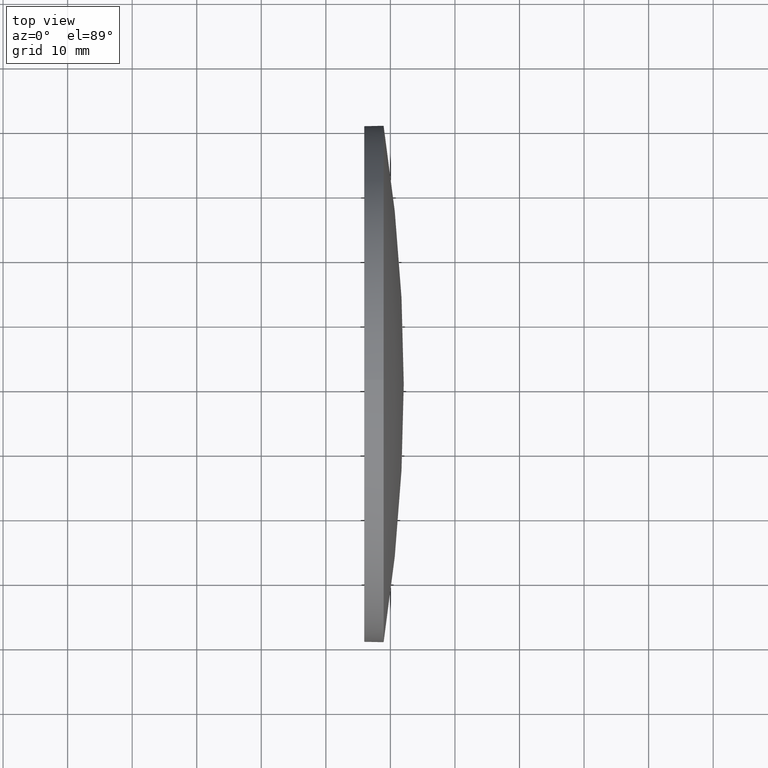
[diagram: clean part render]
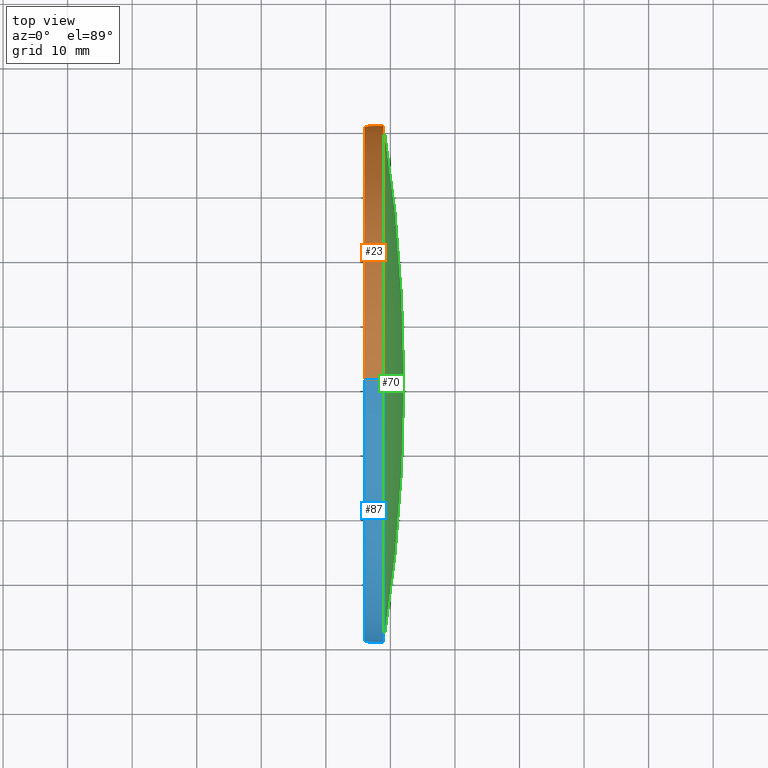
[diagram: same view with three faces highlighted in distinct colors, each labeled with its STEP entity id]
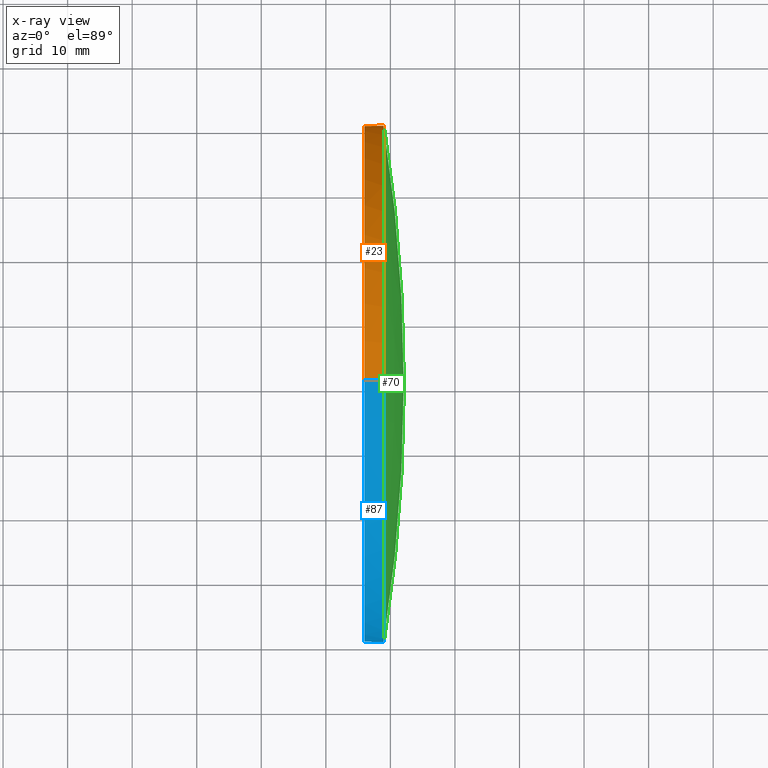
[diagram: x-ray of the same camera — body ghosted, the three highlighted faces saturated]
A machine part, top view with three faces highlighted in distinct colors.
The next image is the same camera in x-ray (body ghosted, the three faces saturated) — at least one of them is partly hidden behind the body in this view.
Their STEP definitions:

[orange] entity #23 — the highlighted cylindrical surface (partial cylindrical patch) has radius 40 mm, axis along (-1, -0, -0).
#8 = CARTESIAN_POINT ( 'NONE',  ( 228.9490942240209100, 130.4671098528244200, 40.00000000000000700 ) ) ;
#9 = DIRECTION ( 'NONE',  ( -1.000000000000000000, -0.0000000000000000000, -0.0000000000000000000 ) ) ;
#14 = DIRECTION ( 'NONE',  ( -1.000000000000000000, -0.0000000000000000000, -0.0000000000000000000 ) ) ;
#16 = CARTESIAN_POINT ( 'NONE',  ( 217.9945825323866300, 130.4671098528244200, 40.00000000000000700 ) ) ;
#17 = AXIS2_PLACEMENT_3D ( 'NONE', #151, #9, #65 ) ;
#23 = ADVANCED_FACE ( 'NONE', ( #91 ), #48, .T. ) ;
#24 = CIRCLE ( 'NONE', #121, 40.00000000000000700 ) ;
#27 = DIRECTION ( 'NONE',  ( 0.0000000000000000000, 0.0000000000000000000, 1.000000000000000000 ) ) ;
#29 = LINE ( 'NONE', #33, #43 ) ;
#33 = CARTESIAN_POINT ( 'NONE',  ( 217.9945825323866300, 130.4671098528244200, -40.00000000000000700 ) ) ;
#38 = CIRCLE ( 'NONE', #17, 40.00000000000000700 ) ;
#43 = VECTOR ( 'NONE', #124, 1000.000000000000000 ) ;
#44 = EDGE_CURVE ( 'NONE', #183, #128, #143, .T. ) ;
#48 = CYLINDRICAL_SURFACE ( 'NONE', #106, 40.00000000000000700 ) ;
#51 = DIRECTION ( 'NONE',  ( -1.000000000000000000, -0.0000000000000000000, -0.0000000000000000000 ) ) ;
#52 = ORIENTED_EDGE ( 'NONE', *, *, #164, .F. ) ;
#56 = CIRCLE ( 'NONE', #158, 40.00000000000000700 ) ;
#65 = DIRECTION ( 'NONE',  ( 0.0000000000000000000, 0.0000000000000000000, 1.000000000000000000 ) ) ;
#69 = EDGE_CURVE ( 'NONE', #78, #170, #24, .T. ) ;
#78 = VERTEX_POINT ( 'NONE', #92 ) ;
#82 = VECTOR ( 'NONE', #107, 1000.000000000000000 ) ;
#83 = CARTESIAN_POINT ( 'NONE',  ( 228.9490942240209100, 130.4671098528244200, -40.00000000000000700 ) ) ;
#91 = FACE_OUTER_BOUND ( 'NONE', #159, .T. ) ;
#92 = CARTESIAN_POINT ( 'NONE',  ( 228.9490942240209100, 170.4671098528244500, 0.0000000000000000000 ) ) ;
#93 = DIRECTION ( 'NONE',  ( -1.000000000000000000, -0.0000000000000000000, -0.0000000000000000000 ) ) ;
#96 = EDGE_CURVE ( 'NONE', #183, #78, #38, .T. ) ;
#101 = EDGE_CURVE ( 'NONE', #170, #178, #29, .T. ) ;
#105 = ORIENTED_EDGE ( 'NONE', *, *, #101, .T. ) ;
#106 = AXIS2_PLACEMENT_3D ( 'NONE', #162, #14, #27 ) ;
#107 = DIRECTION ( 'NONE',  ( -1.000000000000000000, -0.0000000000000000000, -0.0000000000000000000 ) ) ;
#109 = ORIENTED_EDGE ( 'NONE', *, *, #44, .F. ) ;
#118 = CARTESIAN_POINT ( 'NONE',  ( 228.9490942240209100, 130.4671098528244200, 0.0000000000000000000 ) ) ;
#121 = AXIS2_PLACEMENT_3D ( 'NONE', #118, #93, #184 ) ;
#124 = DIRECTION ( 'NONE',  ( -1.000000000000000000, -0.0000000000000000000, -0.0000000000000000000 ) ) ;
#127 = ORIENTED_EDGE ( 'NONE', *, *, #69, .T. ) ;
#128 = VERTEX_POINT ( 'NONE', #180 ) ;
#129 = ORIENTED_EDGE ( 'NONE', *, *, #96, .T. ) ;
#143 = LINE ( 'NONE', #16, #82 ) ;
#151 = CARTESIAN_POINT ( 'NONE',  ( 228.9490942240209100, 130.4671098528244200, 0.0000000000000000000 ) ) ;
#153 = DIRECTION ( 'NONE',  ( 0.0000000000000000000, 0.0000000000000000000, 1.000000000000000000 ) ) ;
#158 = AXIS2_PLACEMENT_3D ( 'NONE', #169, #51, #153 ) ;
#159 = EDGE_LOOP ( 'NONE', ( #127, #105, #52, #109, #129 ) ) ;
#162 = CARTESIAN_POINT ( 'NONE',  ( 217.9945825323866300, 130.4671098528244200, 0.0000000000000000000 ) ) ;
#164 = EDGE_CURVE ( 'NONE', #128, #178, #56, .T. ) ;
#169 = CARTESIAN_POINT ( 'NONE',  ( 225.9490942240209100, 130.4671098528244200, 0.0000000000000000000 ) ) ;
#170 = VERTEX_POINT ( 'NONE', #83 ) ;
#178 = VERTEX_POINT ( 'NONE', #182 ) ;
#180 = CARTESIAN_POINT ( 'NONE',  ( 225.9490942240209100, 130.4671098528244200, 40.00000000000000700 ) ) ;
#182 = CARTESIAN_POINT ( 'NONE',  ( 225.9490942240209100, 130.4671098528244200, -40.00000000000000700 ) ) ;
#183 = VERTEX_POINT ( 'NONE', #8 ) ;
#184 = DIRECTION ( 'NONE',  ( 0.0000000000000000000, 0.0000000000000000000, 1.000000000000000000 ) ) ;

[blue] entity #87 — the highlighted cylindrical surface (partial cylindrical patch) has radius 40 mm, axis along (-1, -0, -0).
#8 = CARTESIAN_POINT ( 'NONE',  ( 228.9490942240209100, 130.4671098528244200, 40.00000000000000700 ) ) ;
#16 = CARTESIAN_POINT ( 'NONE',  ( 217.9945825323866300, 130.4671098528244200, 40.00000000000000700 ) ) ;
#19 = ORIENTED_EDGE ( 'NONE', *, *, #31, .F. ) ;
#22 = CARTESIAN_POINT ( 'NONE',  ( 217.9945825323866300, 130.4671098528244200, 0.0000000000000000000 ) ) ;
#26 = ORIENTED_EDGE ( 'NONE', *, *, #44, .T. ) ;
#29 = LINE ( 'NONE', #33, #43 ) ;
#30 = DIRECTION ( 'NONE',  ( -1.000000000000000000, -0.0000000000000000000, -0.0000000000000000000 ) ) ;
#31 = EDGE_CURVE ( 'NONE', #178, #128, #115, .T. ) ;
#32 = CARTESIAN_POINT ( 'NONE',  ( 228.9490942240209100, 130.4671098528244200, 0.0000000000000000000 ) ) ;
#33 = CARTESIAN_POINT ( 'NONE',  ( 217.9945825323866300, 130.4671098528244200, -40.00000000000000700 ) ) ;
#37 = EDGE_CURVE ( 'NONE', #170, #148, #73, .T. ) ;
#41 = AXIS2_PLACEMENT_3D ( 'NONE', #32, #123, #136 ) ;
#43 = VECTOR ( 'NONE', #124, 1000.000000000000000 ) ;
#44 = EDGE_CURVE ( 'NONE', #183, #128, #143, .T. ) ;
#73 = CIRCLE ( 'NONE', #113, 40.00000000000000700 ) ;
#77 = CYLINDRICAL_SURFACE ( 'NONE', #132, 40.00000000000000700 ) ;
#79 = DIRECTION ( 'NONE',  ( 0.0000000000000000000, 0.0000000000000000000, 1.000000000000000000 ) ) ;
#82 = VECTOR ( 'NONE', #107, 1000.000000000000000 ) ;
#83 = CARTESIAN_POINT ( 'NONE',  ( 228.9490942240209100, 130.4671098528244200, -40.00000000000000700 ) ) ;
#84 = EDGE_CURVE ( 'NONE', #148, #183, #138, .T. ) ;
#87 = ADVANCED_FACE ( 'NONE', ( #167 ), #77, .T. ) ;
#94 = CARTESIAN_POINT ( 'NONE',  ( 225.9490942240209100, 130.4671098528244200, 0.0000000000000000000 ) ) ;
#97 = CARTESIAN_POINT ( 'NONE',  ( 228.9490942240209100, 90.46710985282437900, -4.898587196589416200E-015 ) ) ;
#100 = EDGE_LOOP ( 'NONE', ( #157, #174, #112, #26, #19 ) ) ;
#101 = EDGE_CURVE ( 'NONE', #170, #178, #29, .T. ) ;
#107 = DIRECTION ( 'NONE',  ( -1.000000000000000000, -0.0000000000000000000, -0.0000000000000000000 ) ) ;
#110 = DIRECTION ( 'NONE',  ( 0.0000000000000000000, 0.0000000000000000000, 1.000000000000000000 ) ) ;
#112 = ORIENTED_EDGE ( 'NONE', *, *, #84, .T. ) ;
#113 = AXIS2_PLACEMENT_3D ( 'NONE', #146, #30, #117 ) ;
#114 = AXIS2_PLACEMENT_3D ( 'NONE', #94, #176, #79 ) ;
#115 = CIRCLE ( 'NONE', #114, 40.00000000000000700 ) ;
#117 = DIRECTION ( 'NONE',  ( 0.0000000000000000000, 0.0000000000000000000, 1.000000000000000000 ) ) ;
#119 = DIRECTION ( 'NONE',  ( -1.000000000000000000, -0.0000000000000000000, -0.0000000000000000000 ) ) ;
#123 = DIRECTION ( 'NONE',  ( -1.000000000000000000, -0.0000000000000000000, -0.0000000000000000000 ) ) ;
#124 = DIRECTION ( 'NONE',  ( -1.000000000000000000, -0.0000000000000000000, -0.0000000000000000000 ) ) ;
#128 = VERTEX_POINT ( 'NONE', #180 ) ;
#132 = AXIS2_PLACEMENT_3D ( 'NONE', #22, #119, #110 ) ;
#136 = DIRECTION ( 'NONE',  ( 0.0000000000000000000, 0.0000000000000000000, 1.000000000000000000 ) ) ;
#138 = CIRCLE ( 'NONE', #41, 40.00000000000000700 ) ;
#143 = LINE ( 'NONE', #16, #82 ) ;
#146 = CARTESIAN_POINT ( 'NONE',  ( 228.9490942240209100, 130.4671098528244200, 0.0000000000000000000 ) ) ;
#148 = VERTEX_POINT ( 'NONE', #97 ) ;
#157 = ORIENTED_EDGE ( 'NONE', *, *, #101, .F. ) ;
#167 = FACE_OUTER_BOUND ( 'NONE', #100, .T. ) ;
#170 = VERTEX_POINT ( 'NONE', #83 ) ;
#174 = ORIENTED_EDGE ( 'NONE', *, *, #37, .T. ) ;
#176 = DIRECTION ( 'NONE',  ( -1.000000000000000000, -0.0000000000000000000, -0.0000000000000000000 ) ) ;
#178 = VERTEX_POINT ( 'NONE', #182 ) ;
#180 = CARTESIAN_POINT ( 'NONE',  ( 225.9490942240209100, 130.4671098528244200, 40.00000000000000700 ) ) ;
#182 = CARTESIAN_POINT ( 'NONE',  ( 225.9490942240209100, 130.4671098528244200, -40.00000000000000700 ) ) ;
#183 = VERTEX_POINT ( 'NONE', #8 ) ;

[green] entity #70 — the highlighted spherical surface has radius 257.97 mm.
#4 = DIRECTION ( 'NONE',  ( 1.000000000000000000, 0.0000000000000000000, 0.0000000000000000000 ) ) ;
#6 = DIRECTION ( 'NONE',  ( -0.0000000000000000000, 0.0000000000000000000, 1.000000000000000000 ) ) ;
#8 = CARTESIAN_POINT ( 'NONE',  ( 228.9490942240209100, 130.4671098528244200, 40.00000000000000700 ) ) ;
#9 = DIRECTION ( 'NONE',  ( -1.000000000000000000, -0.0000000000000000000, -0.0000000000000000000 ) ) ;
#10 = AXIS2_PLACEMENT_3D ( 'NONE', #177, #130, #165 ) ;
#15 = ORIENTED_EDGE ( 'NONE', *, *, #28, .F. ) ;
#17 = AXIS2_PLACEMENT_3D ( 'NONE', #151, #9, #65 ) ;
#18 = DIRECTION ( 'NONE',  ( -0.0000000000000000000, 0.0000000000000000000, -1.000000000000000000 ) ) ;
#28 = EDGE_CURVE ( 'NONE', #142, #148, #75, .T. ) ;
#32 = CARTESIAN_POINT ( 'NONE',  ( 228.9490942240209100, 130.4671098528244200, 0.0000000000000000000 ) ) ;
#38 = CIRCLE ( 'NONE', #17, 40.00000000000000700 ) ;
#39 = EDGE_CURVE ( 'NONE', #142, #78, #140, .T. ) ;
#41 = AXIS2_PLACEMENT_3D ( 'NONE', #32, #123, #136 ) ;
#49 = AXIS2_PLACEMENT_3D ( 'NONE', #57, #6, #4 ) ;
#57 = CARTESIAN_POINT ( 'NONE',  ( -25.90116218623498400, 130.4671098528244200, 0.0000000000000000000 ) ) ;
#64 = ORIENTED_EDGE ( 'NONE', *, *, #39, .T. ) ;
#65 = DIRECTION ( 'NONE',  ( 0.0000000000000000000, 0.0000000000000000000, 1.000000000000000000 ) ) ;
#67 = FACE_OUTER_BOUND ( 'NONE', #99, .T. ) ;
#70 = ADVANCED_FACE ( 'NONE', ( #67 ), #175, .T. ) ;
#75 = CIRCLE ( 'NONE', #10, 257.9702564102559600 ) ;
#78 = VERTEX_POINT ( 'NONE', #92 ) ;
#81 = CARTESIAN_POINT ( 'NONE',  ( 232.0690942240209200, 130.4671098528244500, 0.0000000000000000000 ) ) ;
#84 = EDGE_CURVE ( 'NONE', #148, #183, #138, .T. ) ;
#92 = CARTESIAN_POINT ( 'NONE',  ( 228.9490942240209100, 170.4671098528244500, 0.0000000000000000000 ) ) ;
#95 = ORIENTED_EDGE ( 'NONE', *, *, #84, .F. ) ;
#96 = EDGE_CURVE ( 'NONE', #183, #78, #38, .T. ) ;
#97 = CARTESIAN_POINT ( 'NONE',  ( 228.9490942240209100, 90.46710985282437900, -4.898587196589416200E-015 ) ) ;
#99 = EDGE_LOOP ( 'NONE', ( #15, #64, #104, #95 ) ) ;
#104 = ORIENTED_EDGE ( 'NONE', *, *, #96, .F. ) ;
#120 = DIRECTION ( 'NONE',  ( 0.0000000000000000000, 1.000000000000000000, 0.0000000000000000000 ) ) ;
#123 = DIRECTION ( 'NONE',  ( -1.000000000000000000, -0.0000000000000000000, -0.0000000000000000000 ) ) ;
#130 = DIRECTION ( 'NONE',  ( 0.0000000000000000000, 1.224646799147353200E-016, -1.000000000000000000 ) ) ;
#133 = CARTESIAN_POINT ( 'NONE',  ( -25.90116218623498400, 130.4671098528244200, 0.0000000000000000000 ) ) ;
#136 = DIRECTION ( 'NONE',  ( 0.0000000000000000000, 0.0000000000000000000, 1.000000000000000000 ) ) ;
#138 = CIRCLE ( 'NONE', #41, 40.00000000000000700 ) ;
#140 = CIRCLE ( 'NONE', #49, 257.9702564102559000 ) ;
#141 = AXIS2_PLACEMENT_3D ( 'NONE', #133, #18, #120 ) ;
#142 = VERTEX_POINT ( 'NONE', #81 ) ;
#148 = VERTEX_POINT ( 'NONE', #97 ) ;
#151 = CARTESIAN_POINT ( 'NONE',  ( 228.9490942240209100, 130.4671098528244200, 0.0000000000000000000 ) ) ;
#165 = DIRECTION ( 'NONE',  ( 0.0000000000000000000, 1.000000000000000000, 1.224646799147353000E-016 ) ) ;
#175 = SPHERICAL_SURFACE ( 'NONE', #141, 257.9702564102559000 ) ;
#177 = CARTESIAN_POINT ( 'NONE',  ( -25.90116218623498400, 130.4671098528244200, 0.0000000000000000000 ) ) ;
#183 = VERTEX_POINT ( 'NONE', #8 ) ;